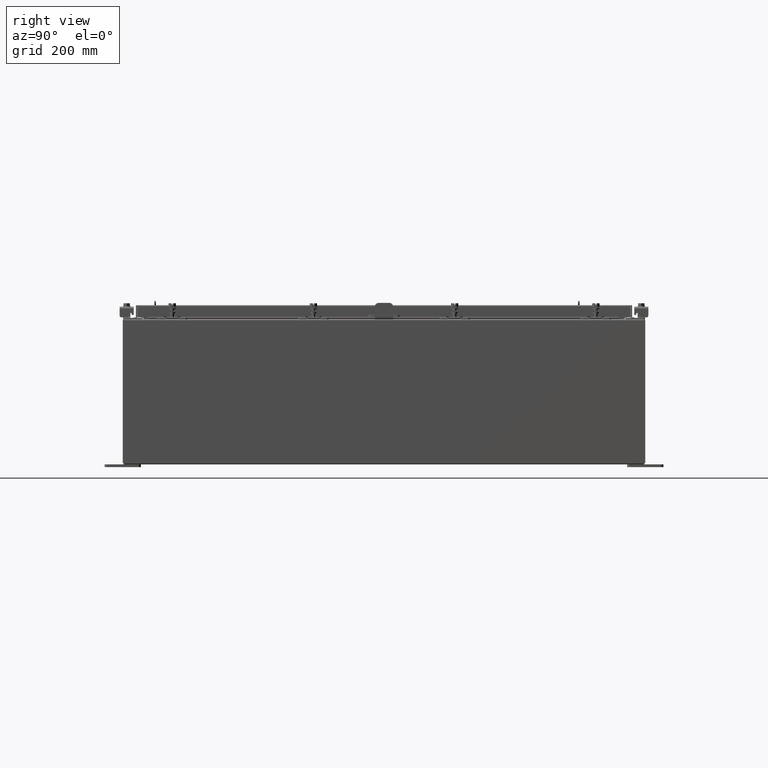
[diagram: clean part render]
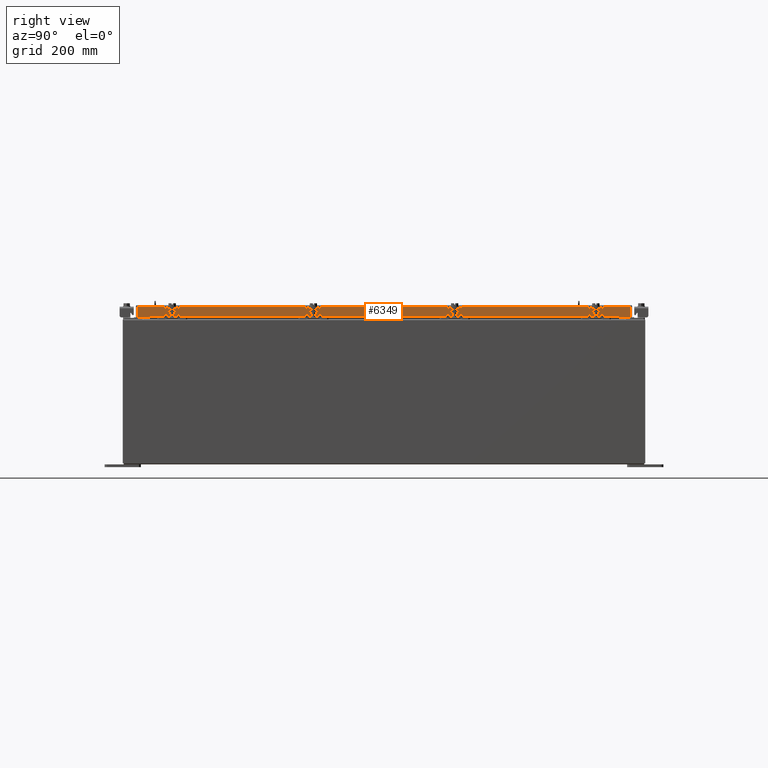
[diagram: same view with one face highlighted and labeled with its STEP entity id]
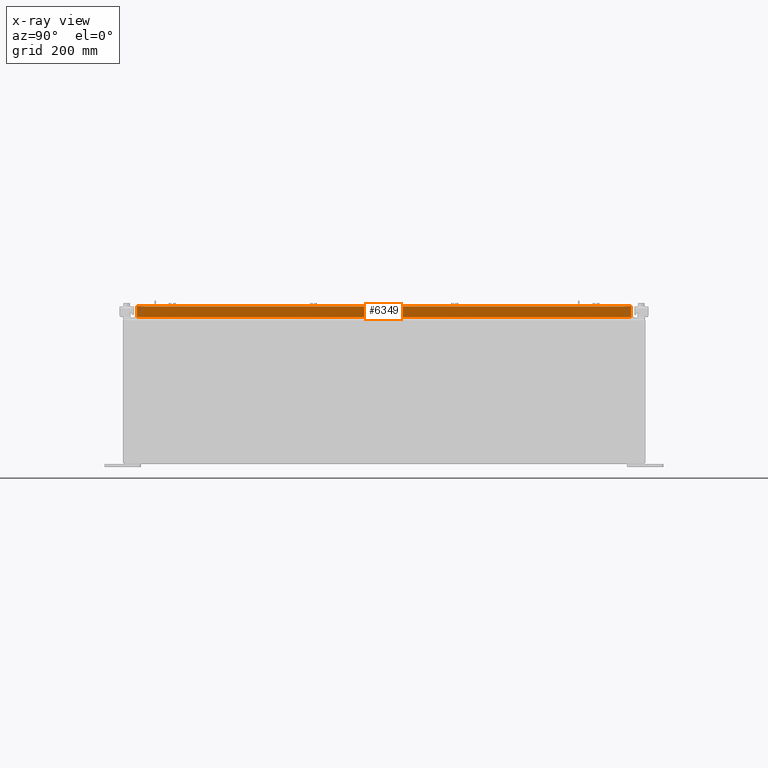
[diagram: x-ray of the same camera — body ghosted, the highlighted face saturated]
A machine part, right view. The second image highlights one B-rep face of the part: STEP entity #6349.
The next image is the same camera in x-ray: the body ghosted, the highlighted face saturated — about 0% of this face is hidden behind the body in this view.
In plain terms, the highlighted planar face has unit normal (1, 0, 0).
Its self-contained STEP definition (entity closure, byte-faithful):
#123 = VECTOR ( 'NONE', #4996, 39.37007874015748100 ) ;
#974 = CARTESIAN_POINT ( 'NONE',  ( 14.07799999999999900, -17.00515786437626900, -0.8499999999999996400 ) ) ;
#1396 = VECTOR ( 'NONE', #21915, 39.37007874015748100 ) ;
#1481 = VERTEX_POINT ( 'NONE', #21709 ) ;
#1503 = ORIENTED_EDGE ( 'NONE', *, *, #15323, .F. ) ;
#1843 = VERTEX_POINT ( 'NONE', #6102 ) ;
#1913 = FACE_OUTER_BOUND ( 'NONE', #10095, .T. ) ;
#2949 = LINE ( 'NONE', #18412, #11906 ) ;
#3213 = EDGE_CURVE ( 'NONE', #1843, #18147, #15911, .T. ) ;
#4478 = VERTEX_POINT ( 'NONE', #16904 ) ;
#4671 = VECTOR ( 'NONE', #24479, 39.37007874015748100 ) ;
#4677 = DIRECTION ( 'NONE',  ( 1.000000000000000000, 0.0000000000000000000, 2.818880942772360100E-015 ) ) ;
#4996 = DIRECTION ( 'NONE',  ( 0.0000000000000000000, -1.000000000000000000, 0.0000000000000000000 ) ) ;
#5160 = LINE ( 'NONE', #10731, #123 ) ;
#5598 = CARTESIAN_POINT ( 'NONE',  ( 14.07799999999999800, -17.00515786437627200, -0.07469999999999978000 ) ) ;
#6102 = CARTESIAN_POINT ( 'NONE',  ( 14.07799999999999600, -16.25515786437626900, -0.8500000000000005300 ) ) ;
#6349 = ADVANCED_FACE ( 'NONE', ( #1913 ), #12323, .T. ) ;
#6484 = EDGE_CURVE ( 'NONE', #13967, #14975, #5160, .T. ) ;
#7144 = VECTOR ( 'NONE', #17609, 39.37007874015748100 ) ;
#9140 = LINE ( 'NONE', #12030, #19184 ) ;
#10095 = EDGE_LOOP ( 'NONE', ( #20036, #23493, #1503, #15326, #10653, #21322 ) ) ;
#10132 = EDGE_CURVE ( 'NONE', #4478, #13967, #17738, .T. ) ;
#10401 = CARTESIAN_POINT ( 'NONE',  ( 14.07799999999999800, 0.0000000000000000000, 3.994501956836086200E-014 ) ) ;
#10417 = CARTESIAN_POINT ( 'NONE',  ( 14.07799999999999800, 17.00515786437626200, -0.08770000000000007000 ) ) ;
#10427 = EDGE_CURVE ( 'NONE', #4478, #1481, #2949, .T. ) ;
#10653 = ORIENTED_EDGE ( 'NONE', *, *, #10132, .T. ) ;
#10731 = CARTESIAN_POINT ( 'NONE',  ( 14.07799999999999800, 0.0000000000000000000, -0.08770000000000007000 ) ) ;
#11906 = VECTOR ( 'NONE', #20339, 39.37007874015748100 ) ;
#12030 = CARTESIAN_POINT ( 'NONE',  ( 14.07799999999999600, 16.25515786437627200, -0.8500000000000005300 ) ) ;
#12323 = PLANE ( 'NONE',  #18172 ) ;
#13967 = VERTEX_POINT ( 'NONE', #10417 ) ;
#14195 = DIRECTION ( 'NONE',  ( 2.818880942772360100E-015, 0.0000000000000000000, -1.000000000000000000 ) ) ;
#14468 = EDGE_CURVE ( 'NONE', #18147, #14975, #19177, .T. ) ;
#14975 = VERTEX_POINT ( 'NONE', #20417 ) ;
#15323 = EDGE_CURVE ( 'NONE', #1481, #1843, #9140, .T. ) ;
#15326 = ORIENTED_EDGE ( 'NONE', *, *, #10427, .F. ) ;
#15745 = CARTESIAN_POINT ( 'NONE',  ( 14.07799999999999800, 17.00515786437626500, 1.586914022634634500E-013 ) ) ;
#15911 = LINE ( 'NONE', #20450, #1396 ) ;
#16904 = CARTESIAN_POINT ( 'NONE',  ( 14.07799999999999900, 17.00515786437627200, -0.8499999999999996400 ) ) ;
#17609 = DIRECTION ( 'NONE',  ( -2.818880942772360500E-015, -6.982962677686269100E-015, 1.000000000000000000 ) ) ;
#17738 = LINE ( 'NONE', #15745, #7144 ) ;
#18147 = VERTEX_POINT ( 'NONE', #974 ) ;
#18172 = AXIS2_PLACEMENT_3D ( 'NONE', #10401, #4677, #14195 ) ;
#18412 = CARTESIAN_POINT ( 'NONE',  ( 14.07799999999999900, -17.09400000000000100, -0.8499999999999996400 ) ) ;
#19177 = LINE ( 'NONE', #5598, #4671 ) ;
#19184 = VECTOR ( 'NONE', #23286, 39.37007874015748100 ) ;
#20036 = ORIENTED_EDGE ( 'NONE', *, *, #14468, .F. ) ;
#20339 = DIRECTION ( 'NONE',  ( 0.0000000000000000000, -1.000000000000000000, 0.0000000000000000000 ) ) ;
#20417 = CARTESIAN_POINT ( 'NONE',  ( 14.07799999999999800, -17.00515786437627200, -0.08770000000000007000 ) ) ;
#20450 = CARTESIAN_POINT ( 'NONE',  ( 14.07799999999999900, -17.09400000000000100, -0.8499999999999996400 ) ) ;
#21322 = ORIENTED_EDGE ( 'NONE', *, *, #6484, .T. ) ;
#21709 = CARTESIAN_POINT ( 'NONE',  ( 14.07799999999999600, 16.25515786437626900, -0.8500000000000005300 ) ) ;
#21915 = DIRECTION ( 'NONE',  ( 0.0000000000000000000, -1.000000000000000000, 0.0000000000000000000 ) ) ;
#23286 = DIRECTION ( 'NONE',  ( 0.0000000000000000000, -1.000000000000000000, 0.0000000000000000000 ) ) ;
#23493 = ORIENTED_EDGE ( 'NONE', *, *, #3213, .F. ) ;
#24479 = DIRECTION ( 'NONE',  ( -2.818880942772360500E-015, -6.982962677686269100E-015, 1.000000000000000000 ) ) ;